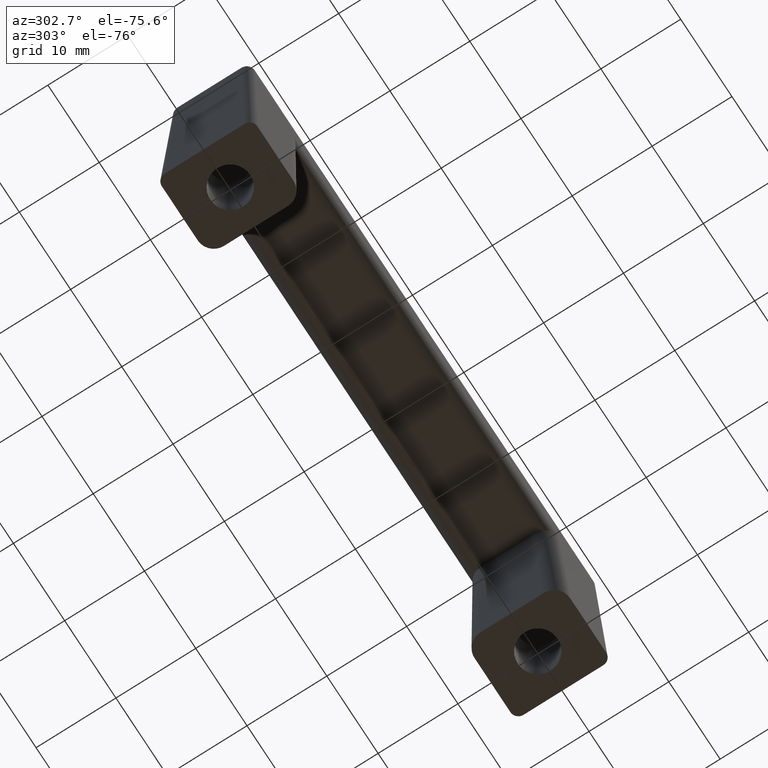
[diagram: clean part render]
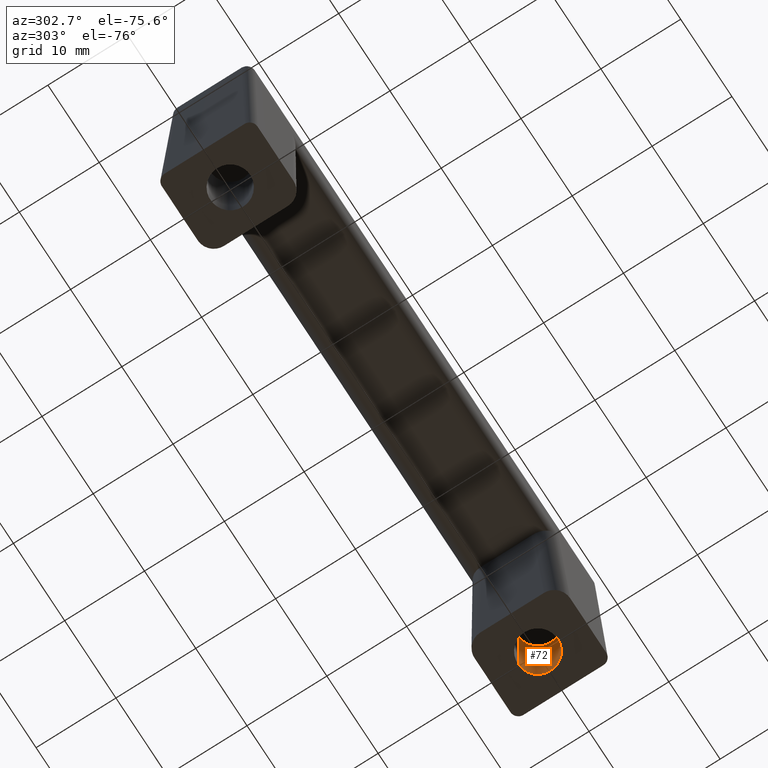
[diagram: same view with one face highlighted and labeled with its STEP entity id]
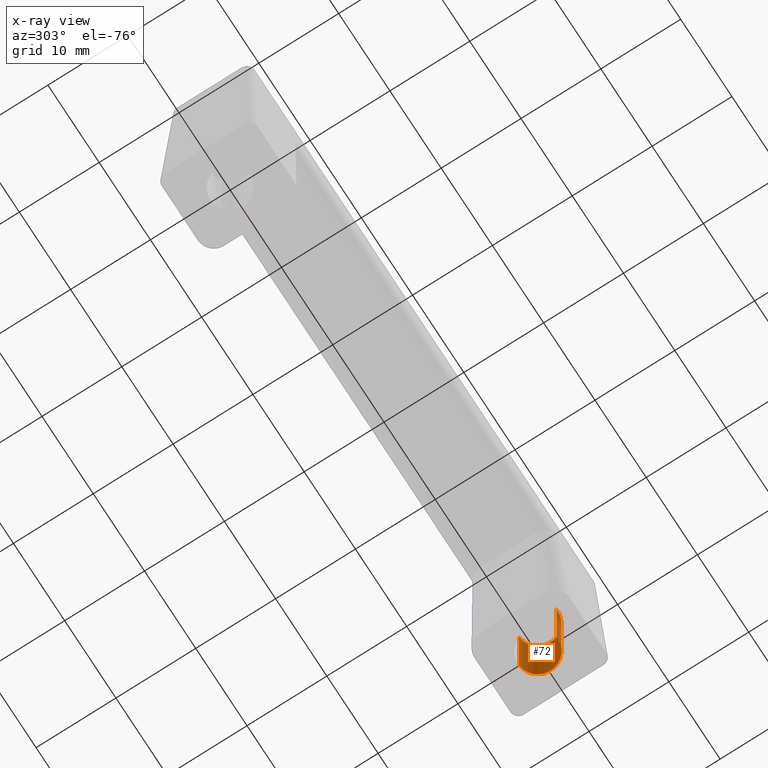
[diagram: x-ray of the same camera — body ghosted, the highlighted face saturated]
A machine part, auxiliary view. The second image highlights one B-rep face of the part: STEP entity #72.
The next image is the same camera in x-ray: the body ghosted, the highlighted face saturated — about 4% of this face is hidden behind the body in this view.
In plain terms, the highlighted cylindrical surface (edge-blend (fillet) strip) has radius 2.5 mm, axis along (-0, 0, 1).
Its self-contained STEP definition (entity closure, byte-faithful):
#72=ADVANCED_FACE('',(#397),#396,.F.);
#396=CYLINDRICAL_SURFACE('',#643,2.50000000000E+00);
#397=FACE_OUTER_BOUND('',#644,.T.);
#640=CARTESIAN_POINT('',(3.00000000000E+01,-6.85763470094E-15,1.23000000000E+01));
#641=DIRECTION('',(-3.89009260495E-16,3.06156927715E-17,1.00000000000E+00));
#642=DIRECTION('',(-7.84590957278E-02,-9.96917333733E-01,-5.54667823984E-31));
#643=AXIS2_PLACEMENT_3D('',#640,#641,#642);
#644=EDGE_LOOP('',(#800,#801,#802,#803));
#800=ORIENTED_EDGE('',*,*,#877,.F.);
#801=ORIENTED_EDGE('',*,*,#888,.T.);
#802=ORIENTED_EDGE('',*,*,#824,.T.);
#803=ORIENTED_EDGE('',*,*,#889,.F.);
#824=EDGE_CURVE('',#987,#979,#988,.T.);
#877=EDGE_CURVE('',#1331,#1338,#1339,.T.);
#888=EDGE_CURVE('',#1331,#987,#1408,.T.);
#889=EDGE_CURVE('',#1338,#979,#1414,.T.);
#979=VERTEX_POINT('',#1476);
#987=VERTEX_POINT('',#1482);
#988=CIRCLE('',#1486,2.50000000002E+00);
#1331=VERTEX_POINT('',#1700);
#1338=VERTEX_POINT('',#1705);
#1339=CIRCLE('',#1709,2.50000000002E+00);
#1408=(BOUNDED_CURVE() B_SPLINE_CURVE(1,(#1746,#1747),.UNSPECIFIED.,.F.,.F.) B_SPLINE_CURVE_WITH_KNOTS((2,2),(8.33333343261E-02,9.16666667006E-01),.UNSPECIFIED.) CURVE() GEOMETRIC_REPRESENTATION_ITEM() RATIONAL_B_SPLINE_CURVE((1.00000000000E+00,1.00000000000E+00)) REPRESENTATION_ITEM('') );
#1414=(BOUNDED_CURVE() B_SPLINE_CURVE(1,(#1748,#1749),.UNSPECIFIED.,.F.,.F.) B_SPLINE_CURVE_WITH_KNOTS((2,2),(8.33333333333E-02,9.16666666667E-01),.UNSPECIFIED.) CURVE() GEOMETRIC_REPRESENTATION_ITEM() RATIONAL_B_SPLINE_CURVE((7.50000000000E-01,7.50000000000E-01)) REPRESENTATION_ITEM('') );
#1476=CARTESIAN_POINT('',(3.01962684498E+01,2.49228383127E+00,1.20000000000E+01));
#1482=CARTESIAN_POINT('',(2.98038522606E+01,-2.49229333436E+00,1.20000000000E+01));
#1483=CARTESIAN_POINT('',(3.00000000000E+01,-1.41449074675E-11,1.20000000000E+01));
#1484=DIRECTION('',(-7.10542735760E-16,7.53644380168E-16,1.00000000000E+00));
#1485=DIRECTION('',(-1.00000000000E+00,5.65494318028E-12,-7.10542735764E-16));
#1486=AXIS2_PLACEMENT_3D('',#1483,#1484,#1485);
#1700=CARTESIAN_POINT('',(2.98038522606E+01,-2.49229333436E+00,-3.89780883448E-16));
#1705=CARTESIAN_POINT('',(3.01962684498E+01,2.49228383127E+00,-3.33049448939E-16));
#1706=CARTESIAN_POINT('',(3.00000000000E+01,-1.41449074675E-11,-3.61423891725E-16));
#1707=DIRECTION('',(-1.44569556689E-16,1.45272045256E-31,1.00000000000E+00));
#1708=DIRECTION('',(-1.00000000000E+00,5.65494318028E-12,-1.44569556689E-16));
#1709=AXIS2_PLACEMENT_3D('',#1706,#1707,#1708);
#1746=CARTESIAN_POINT('',(2.98038522607E+01,-2.49229333433E+00,1.42955136617E-08));
#1747=CARTESIAN_POINT('',(2.98038522607E+01,-2.49229333433E+00,1.20000000049E+01));
#1748=CARTESIAN_POINT('',(3.01961477393E+01,2.49229333433E+00,-1.48029736617E-16));
#1749=CARTESIAN_POINT('',(3.01961477393E+01,2.49229333433E+00,1.20000000000E+01));